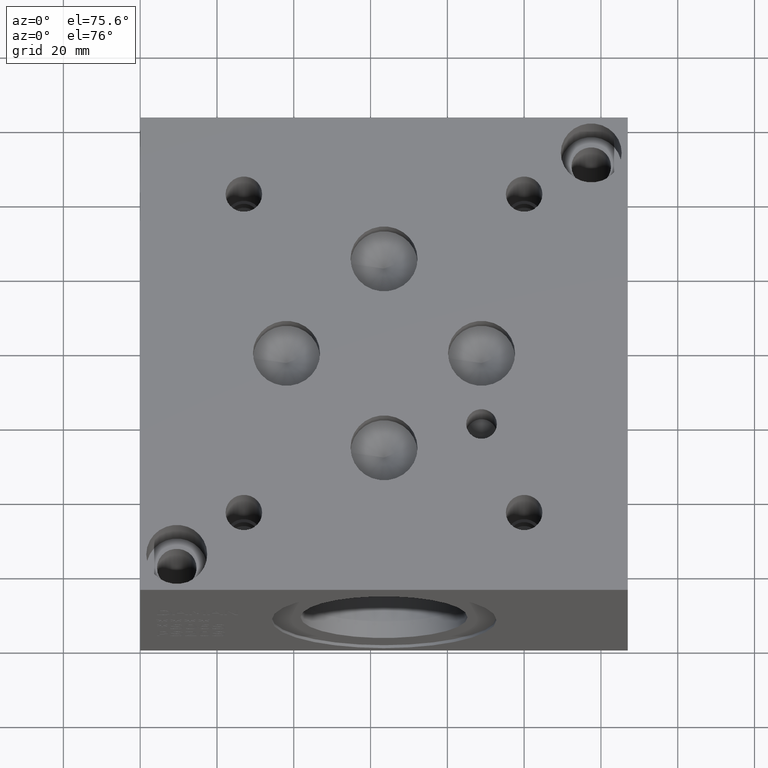
[diagram: clean part render]
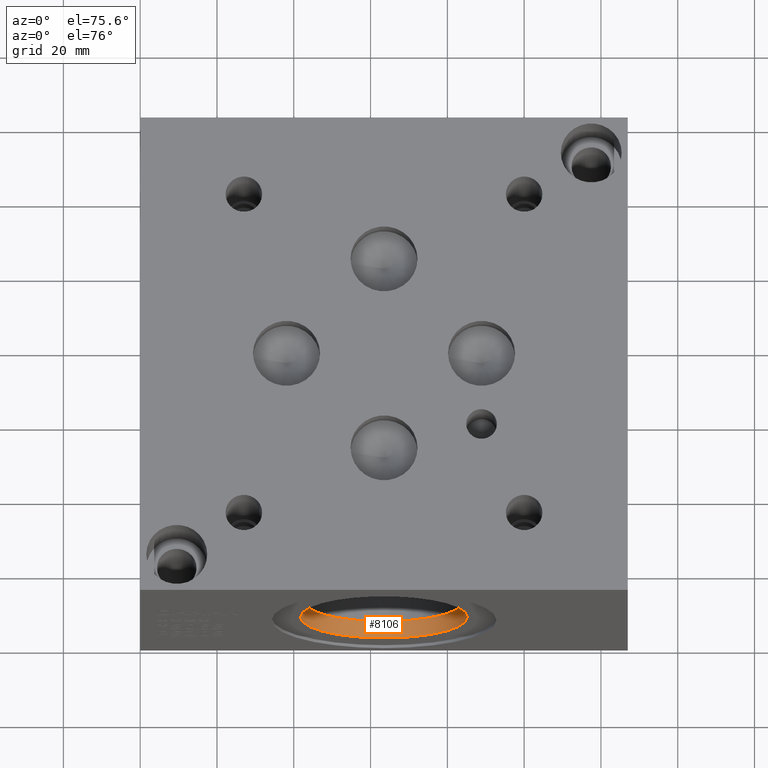
[diagram: same view with one face highlighted and labeled with its STEP entity id]
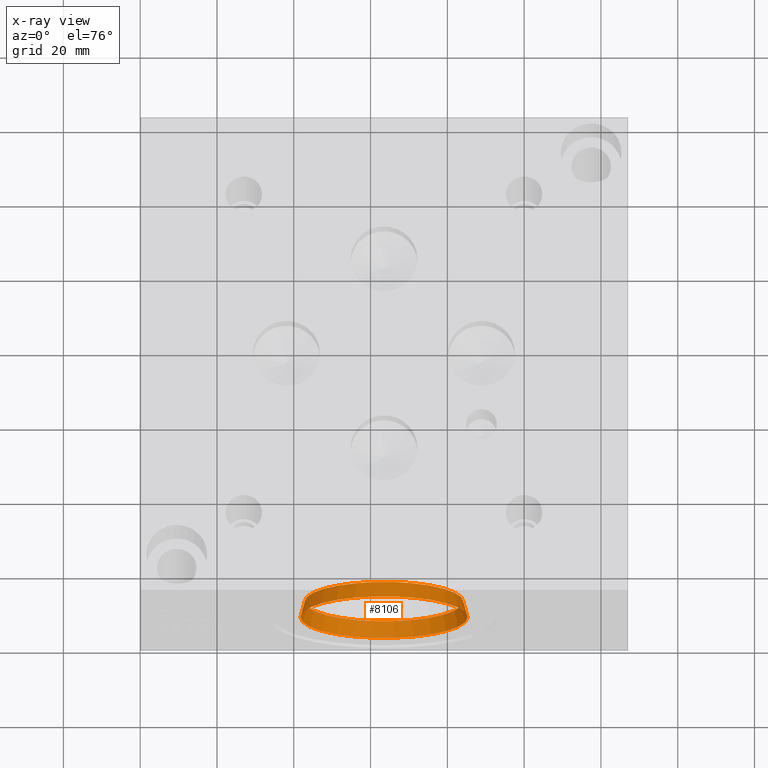
[diagram: x-ray of the same camera — body ghosted, the highlighted face saturated]
A machine part, auxiliary view. The second image highlights one B-rep face of the part: STEP entity #8106.
The next image is the same camera in x-ray: the body ghosted, the highlighted face saturated — about 0% of this face is hidden behind the body in this view.
In plain terms, the highlighted conical surface has half-angle 15 deg.
Its self-contained STEP definition (entity closure, byte-faithful):
#69=CONICAL_SURFACE('',#8458,10.87755,0.261799387799149);
#132=CIRCLE('',#8456,20.6375);
#133=CIRCLE('',#8459,21.7551);
#134=CIRCLE('',#8460,21.7551);
#1038=FACE_OUTER_BOUND('',#1486,.T.);
#1486=EDGE_LOOP('',(#6916,#6917,#6918,#6919,#6920));
#2246=LINE('',#13956,#2974);
#2974=VECTOR('',#9851,10.87755);
#3692=VERTEX_POINT('',#13947);
#3693=VERTEX_POINT('',#13953);
#3694=VERTEX_POINT('',#13954);
#4792=EDGE_CURVE('',#3692,#3692,#132,.T.);
#4795=EDGE_CURVE('',#3693,#3694,#133,.T.);
#4796=EDGE_CURVE('',#3694,#3692,#2246,.T.);
#4797=EDGE_CURVE('',#3694,#3693,#134,.T.);
#6916=ORIENTED_EDGE('',*,*,#4795,.T.);
#6917=ORIENTED_EDGE('',*,*,#4796,.T.);
#6918=ORIENTED_EDGE('',*,*,#4792,.T.);
#6919=ORIENTED_EDGE('',*,*,#4796,.F.);
#6920=ORIENTED_EDGE('',*,*,#4797,.T.);
#8106=ADVANCED_FACE('',(#1038),#69,.F.);
#8456=AXIS2_PLACEMENT_3D('',#13948,#9841,#9842);
#8458=AXIS2_PLACEMENT_3D('',#13952,#9847,#9848);
#8459=AXIS2_PLACEMENT_3D('',#13955,#9849,#9850);
#8460=AXIS2_PLACEMENT_3D('',#13957,#9852,#9853);
#9841=DIRECTION('center_axis',(0.,1.,0.));
#9842=DIRECTION('ref_axis',(1.,0.,0.));
#9847=DIRECTION('center_axis',(0.,-1.,0.));
#9848=DIRECTION('ref_axis',(1.,0.,0.));
#9849=DIRECTION('center_axis',(0.,-1.,0.));
#9850=DIRECTION('ref_axis',(1.,0.,0.));
#9851=DIRECTION('',(0.258819045102521,0.965925826289068,3.16961915143176E-17));
#9852=DIRECTION('center_axis',(0.,-1.,0.));
#9853=DIRECTION('ref_axis',(1.,0.,0.));
#13947=CARTESIAN_POINT('',(42.8625,4.97099998253897,31.75));
#13948=CARTESIAN_POINT('Origin',(63.5,4.97099998253897,31.75));
#13952=CARTESIAN_POINT('Origin',(63.5,41.3956292618708,31.75));
#13953=CARTESIAN_POINT('',(85.2551,0.80006,31.75));
#13954=CARTESIAN_POINT('',(41.7449,0.800060000000009,31.75));
#13955=CARTESIAN_POINT('Origin',(63.5,0.80006,31.75));
#13956=CARTESIAN_POINT('',(52.62245,41.3956292618708,31.75));
#13957=CARTESIAN_POINT('Origin',(63.5,0.80006,31.75));